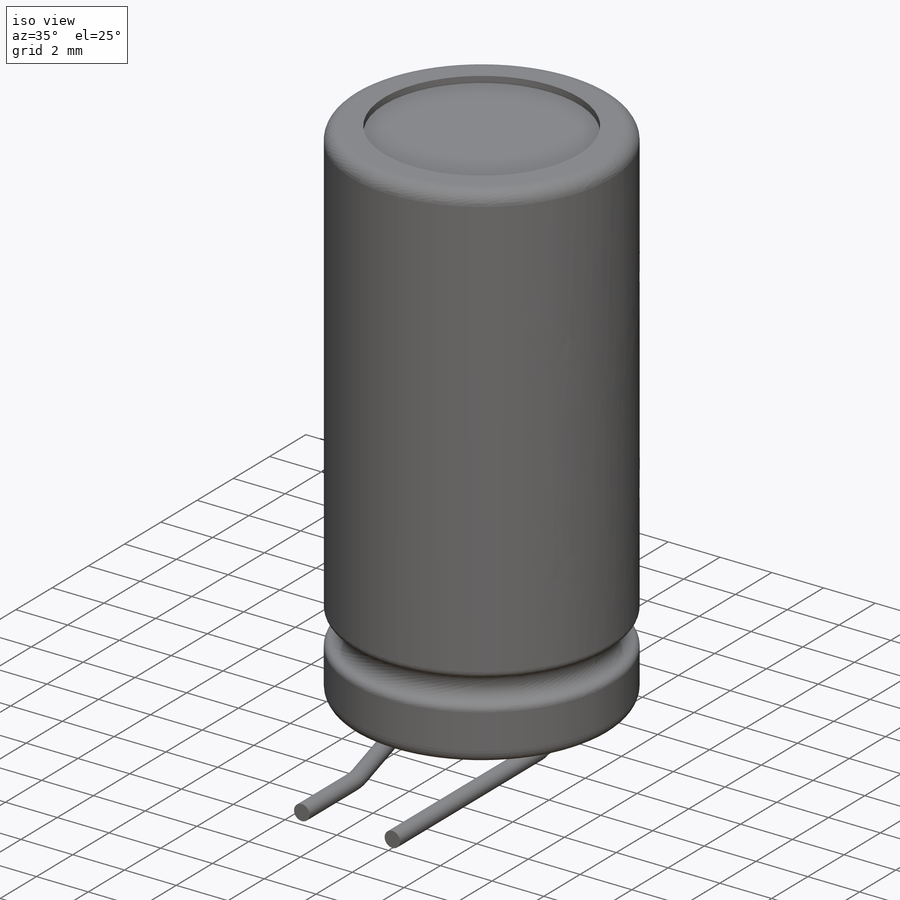
[diagram: iso view]
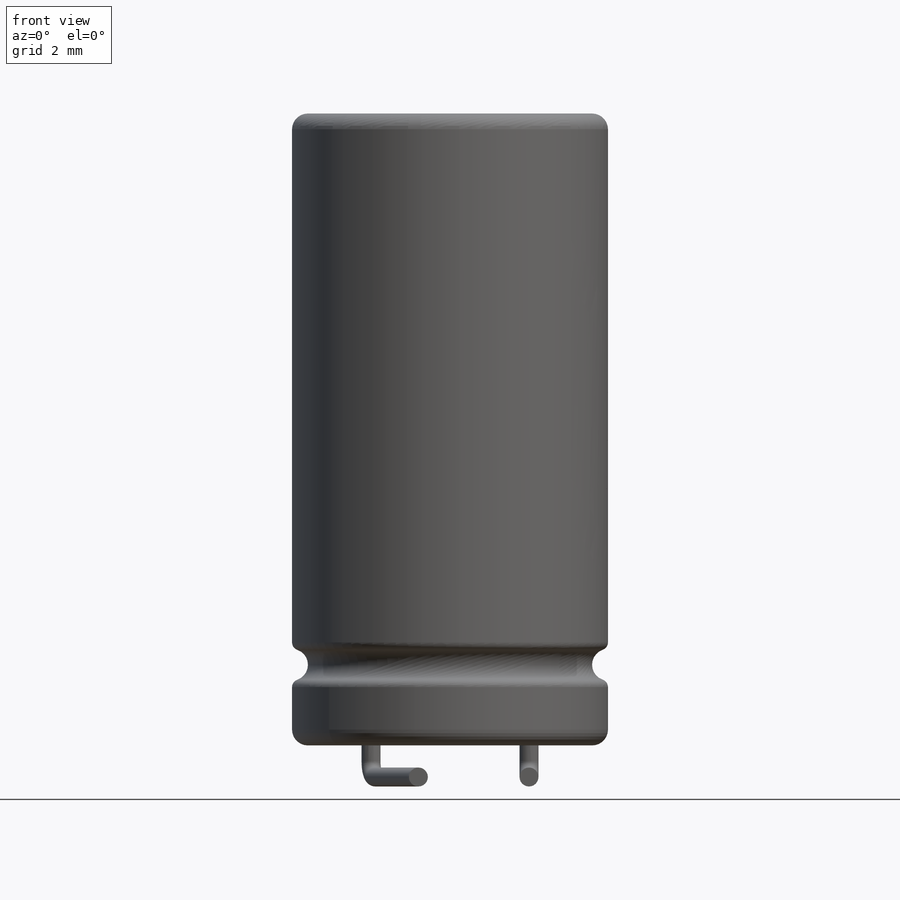
[diagram: front view]
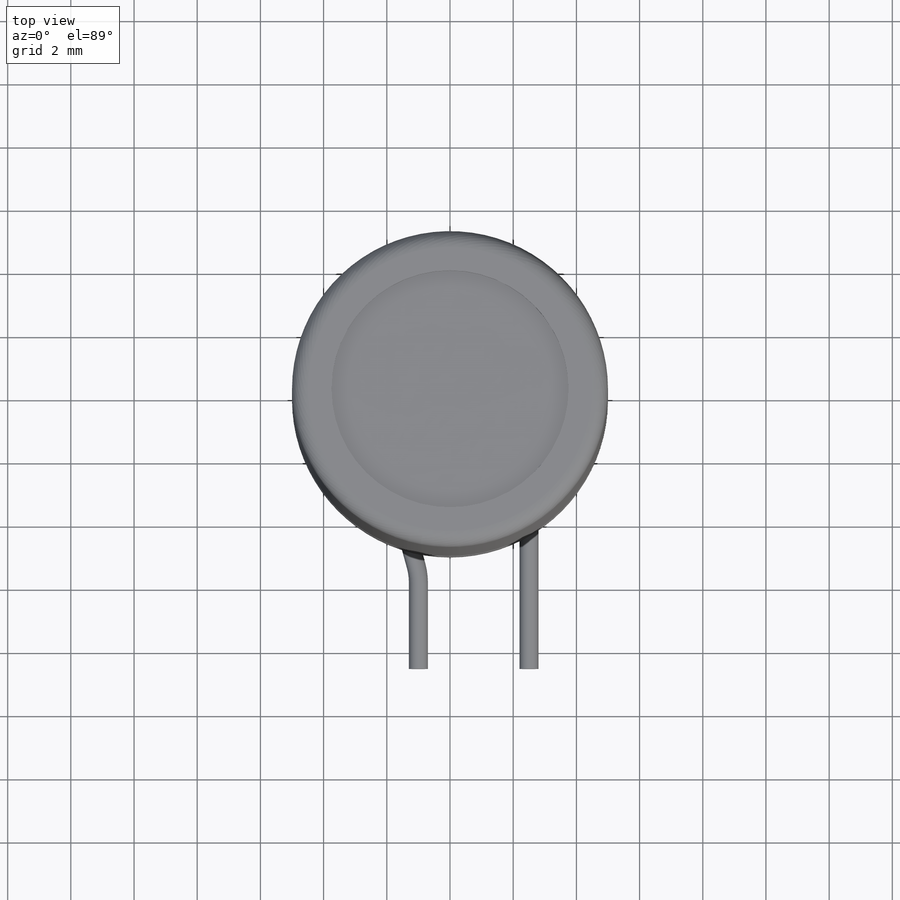
[diagram: top view]
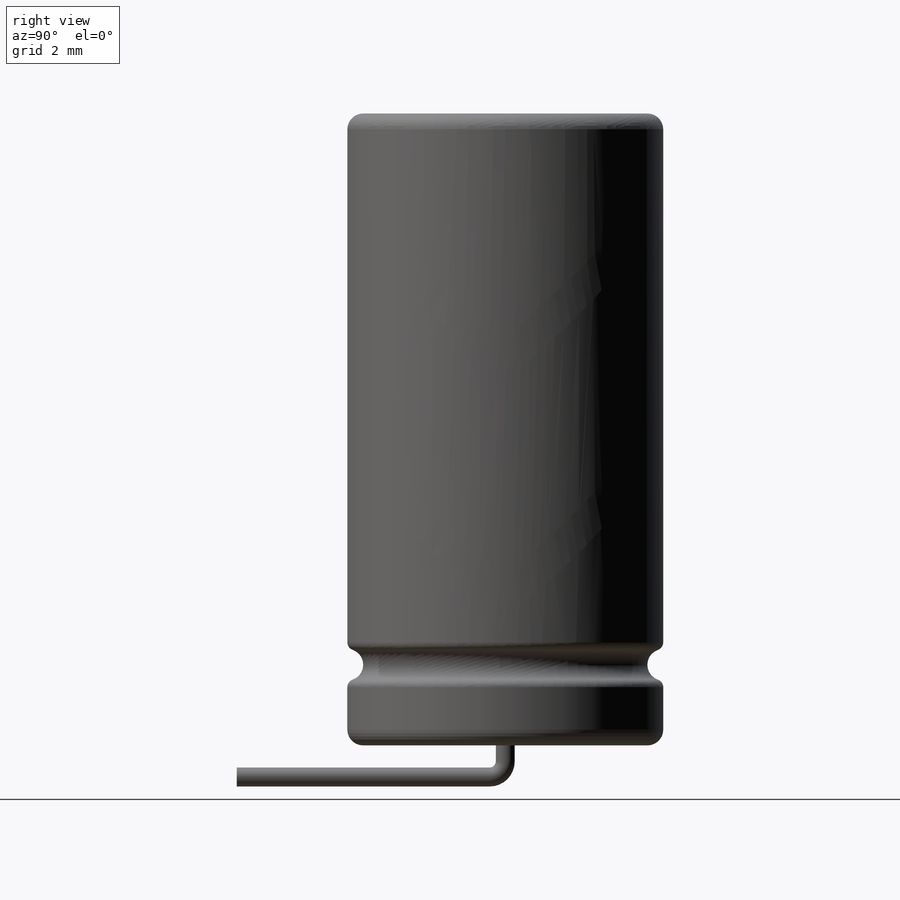
[diagram: right view]
SOLIDWORKS PART (.sldprt)
format: sldprt  version: not decoded by parser v0  size: 536,064 bytes
history: native  units: mm
features: sketch x14, extrude x3, cut_extrude x3, fillet x2, sweep x2, material x1, cut_revolve x1, plane x1 (+11 scaffold rows collapsed)
feature tree (38):
  scaffold x11  (default folders/planes/origin — collapsed)
  material  "Material <not specified>"
  sketch  "Sketch1"  dims[D1=10.0mm]
  extrude  "Base-Extrude"  Depth=20mm
  sketch  "Sketch2"  dims[D1=0.5mm]
  cut_revolve  "Cut-Revolve1"  Angle=360deg
  sketch  "Sketch4"  dims[D1=7.5mm]
  cut_extrude  "Cut-Extrude1"  Depth=0.25mm
  sketch  "Sketch3"  dims[c1.D1=0.6mm c1.D2=0.6mm c1.D3=0.6mm c2.D2=1.75mm c2.D3=3.5mm]
  extrude  "Boss-Extrude1"  Depth=29mm
  sketch  "Sketch5"  dims[D1=0.0mm]
  cut_extrude  "Cut-Extrude2"  Depth=5mm
  sketch  "Sketch6"  dims[D1=7.5mm]
  cut_extrude  "Cut-Extrude3"  Depth=0.25mm
  plane  "Plane1"
  sketch  "Sketch10"  dims[D1=7.0mm]
  sketch  "Sketch8"  dims[D1=7.0mm D2=1.4mm D3=4.5mm D4=4.0mm D5=4.0mm]
  sketch  "Sketch11"
  extrude  "Split Line3"  [1 undecoded]
  fillet  "Fillet3"  Radius=0.5mm
  fillet  "Fillet4"  Radius=0.25mm
  sketch  "3DSketch1"  dims[D1=3.175mm Diameter=~2.38125mm Width=0.0 Depth=0.0 StubLength=0.0mm]
  sketch  "Sketch12"  dims[c1.D1=0.6mm c1.D2=5.0mm c1.D3=2.5mm c2.D1=2.5mm]
  sketch  "Sketch14"  dims[c1.D2=0.5mm c1.D1=~0.656786mm c2.D1=90.0deg c3.D1=~0.656786mm c4.D1=90.0deg c5.D1=0.5mm c5.D3=8.0mm]
  sweep  "Sweep1"
  sketch  "Sketch17"  dims[D1=0.6mm D2=2.5mm]
  sketch  "3DSketch2"  dims[c1.D3=0.5mm c1.D4=2.0mm c1.D1=0.75mm c1.D2=1.25mm c2.D3=~9.920632mm c2.D4=8.5mm c3.D3=8.5mm c3.D4=8.5mm c4.D3=1.0mm c4.D4=1.0mm c4.D5=3.0mm c4.D6=~1.099392mm]
  sweep  "Sweep3"
decode coverage: 21 of 25 modeling features carry decoded parameters
note: ~ marks probable driven/reference dimensions
note: 1 parameter value undecoded
note: suppression state not decoded; provenance and decode notes live in map.json
